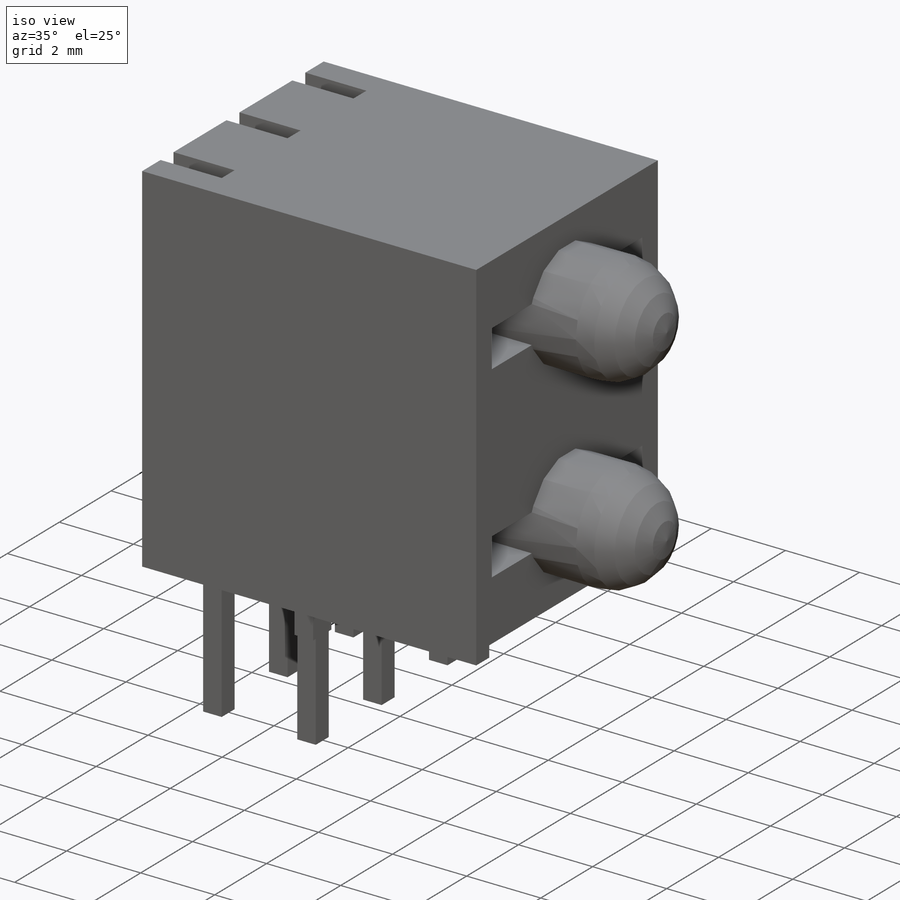
[diagram: iso view]
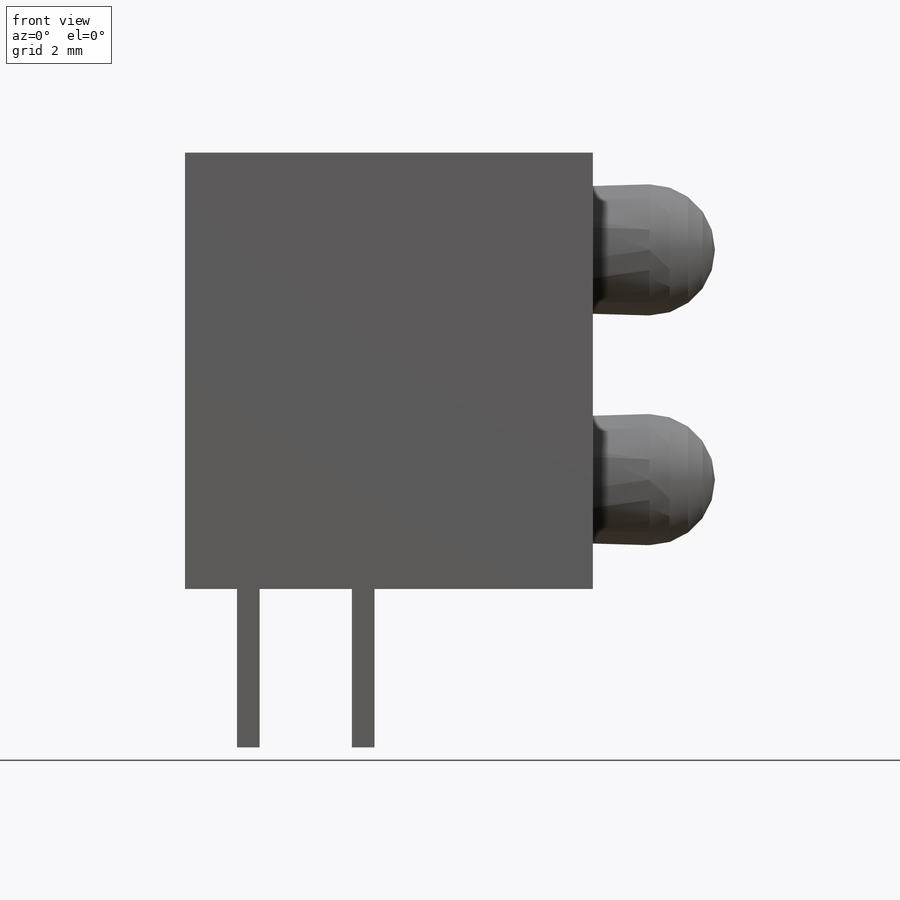
[diagram: front view]
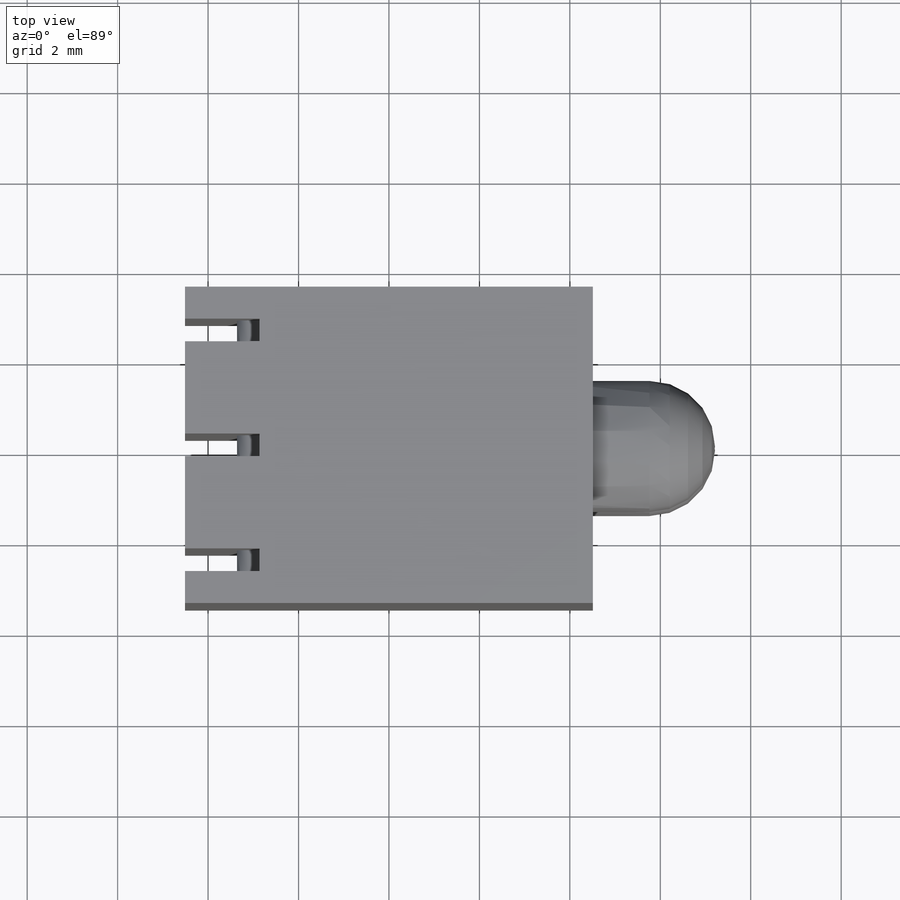
[diagram: top view]
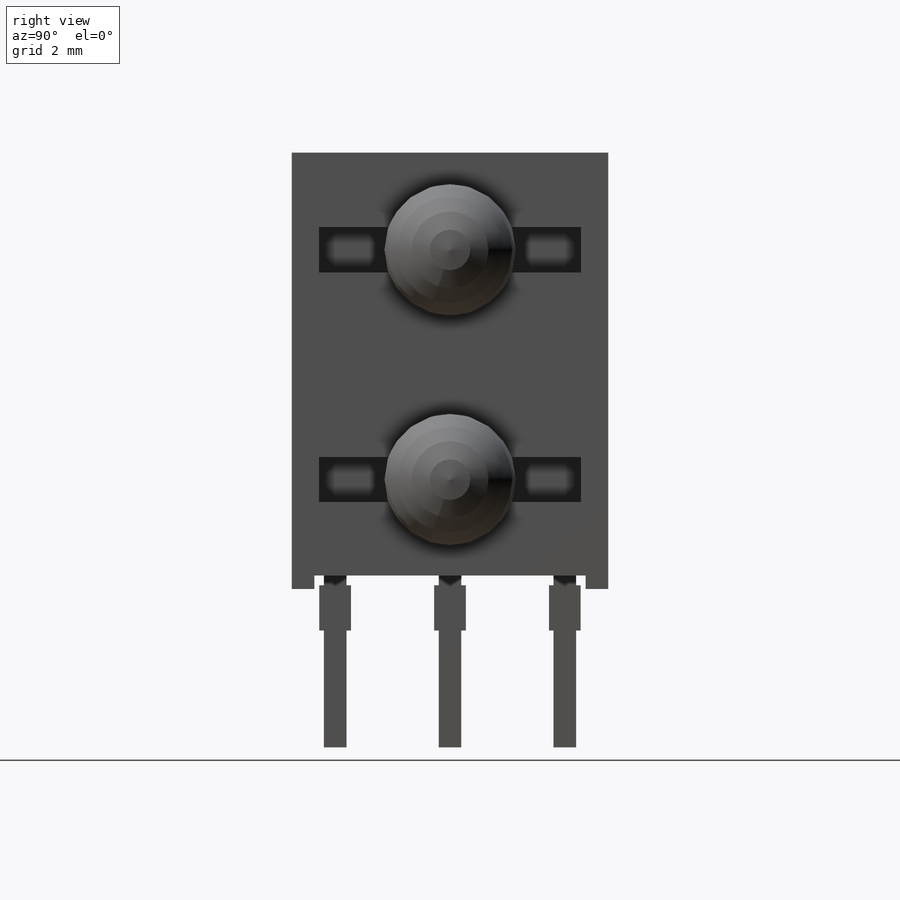
[diagram: right view]
SOLIDWORKS PART (.sldprt)
format: sldprt  version: not decoded by parser v0  size: 893,440 bytes
history: native  units: mm
features: sketch x12, cut_extrude x6, extrude x4, revolve x2, material x1, fillet x1 (+11 scaffold rows collapsed)
feature tree (37):
  scaffold x11  (default folders/planes/origin — collapsed)
  material  "Material <not specified>"
  sketch  "Sketch1"  dims[D1=9.65mm D2=9.02mm]
  extrude  "Extrude1"  Depth=7mm
  sketch  "Sketch4"  dims[D2=2.9mm D1=2.7mm D3=5.08mm D4=2.42mm]
  revolve  "Revolve1"  Angle=360deg
  revolve  "Revolve2"  [1 undecoded]
  sketch  "Sketch4<4>"  dims[D1=360.0deg]
  sketch  "Sketch5"  dims[D1=1.0mm D2=5.8mm D3=0.5mm D4=0.5mm D5=0.3mm]
  cut_extrude  "Cut-Extrude1"  [1 undecoded]
  sketch  "Sketch6"  dims[c1.D1=0.5mm c1.D2=2.54mm c1.D3=5.08mm c1.D4=0.5mm c1.D5=0.5mm c1.D6=2.54mm c1.D7=0.5mm c1.D8=0.5mm c2.D8=90.0deg c3.D8=2.54mm]
  cut_extrude  "Cut-Extrude2"  [1 undecoded]
  cut_extrude  "Cut-Extrude3"  [1 undecoded]
  sketch  "Sketch6<3>"
  extrude  "Extrude2"  [1 undecoded]
  sketch  "Sketch6<4>"
  extrude  "Extrude3"  [1 undecoded]
  sketch  "Sketch6<5>"  dims[D1=3.8mm]
  cut_extrude  "Cut-Extrude4"  [1 undecoded]
  sketch  "Sketch6<6>"
  fillet  "Fillet1"  Radius=0.5mm
  sketch  "Sketch7"  dims[D1=1.0mm D2=0.7mm]
  extrude  "Extrude4"  [1 undecoded]
  cut_extrude  "Cut-Extrude5"  [1 undecoded]
  sketch  "Sketch5<3>"  dims[D1=2.0mm]
  sketch  "Sketch8"  dims[D1=3.0mm]
  cut_extrude  "Cut-Extrude6"  Depth=0.01mm
decode coverage: 13 of 25 modeling features carry decoded parameters
note: 9 parameter values undecoded
summary: no parameter record found for 9 features
note: suppression state not decoded; provenance and decode notes live in map.json
